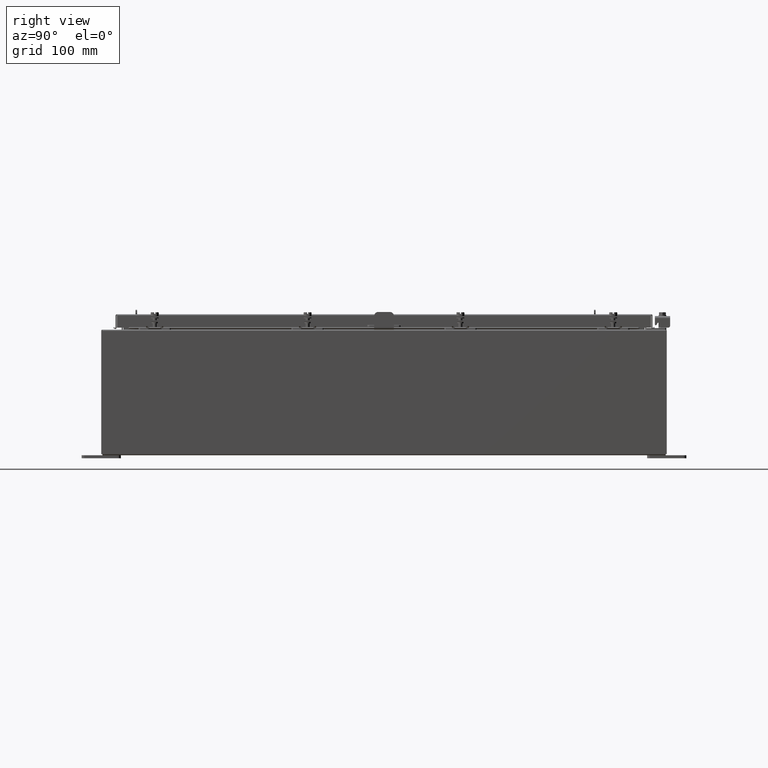
[diagram: clean part render]
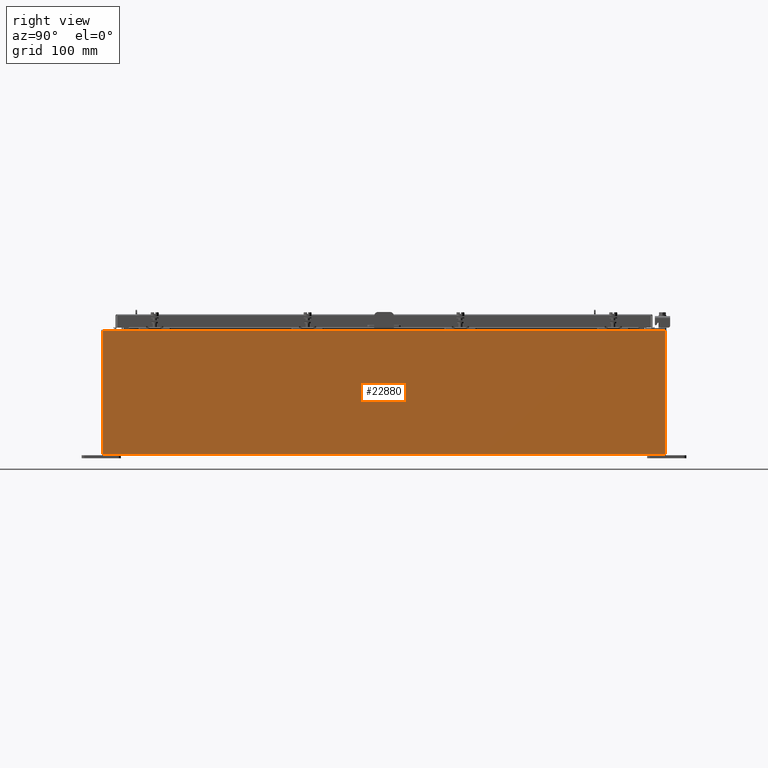
[diagram: same view with one face highlighted and labeled with its STEP entity id]
A machine part, right view. The second image highlights one B-rep face of the part: STEP entity #22880.
In plain terms, the highlighted planar face has unit normal (-1, 0, 0).
Its self-contained STEP definition (entity closure, byte-faithful):
#354 = CARTESIAN_POINT ( 'NONE',  ( 12.00000000000000200, 0.0000000000000000000, -4.327932773236201900E-014 ) ) ;
#427 = DIRECTION ( 'NONE',  ( 3.584876173029202900E-015, 0.0000000000000000000, 1.000000000000000000 ) ) ;
#1502 = VERTEX_POINT ( 'NONE', #15257 ) ;
#2184 = PLANE ( 'NONE',  #15891 ) ;
#2449 = DIRECTION ( 'NONE',  ( -2.185366332686126200E-031, -1.000000000000000000, -6.096072018129156600E-017 ) ) ;
#3275 = LINE ( 'NONE', #6709, #17047 ) ;
#3877 = LINE ( 'NONE', #11215, #8111 ) ;
#6426 = VERTEX_POINT ( 'NONE', #16837 ) ;
#6709 = CARTESIAN_POINT ( 'NONE',  ( 12.00000000000003000, 17.92530000000000000, 7.837599999999992100 ) ) ;
#7049 = CARTESIAN_POINT ( 'NONE',  ( 12.00000000000003000, -17.92530000000000000, 7.837599999999998300 ) ) ;
#7597 = EDGE_CURVE ( 'NONE', #13063, #1502, #3877, .T. ) ;
#8111 = VECTOR ( 'NONE', #427, 39.37007874015748100 ) ;
#8393 = ORIENTED_EDGE ( 'NONE', *, *, #7597, .T. ) ;
#8519 = DIRECTION ( 'NONE',  ( -0.0000000000000000000, -1.000000000000000000, -0.0000000000000000000 ) ) ;
#10063 = ORIENTED_EDGE ( 'NONE', *, *, #12839, .T. ) ;
#10670 = VERTEX_POINT ( 'NONE', #7049 ) ;
#10848 = CARTESIAN_POINT ( 'NONE',  ( 12.00000000000000200, 17.92529999999999600, 0.01300000000000203200 ) ) ;
#11215 = CARTESIAN_POINT ( 'NONE',  ( 12.00000000000000200, 17.92529999999999600, -4.327932773236201900E-014 ) ) ;
#11697 = EDGE_CURVE ( 'NONE', #10670, #6426, #17207, .T. ) ;
#12316 = CARTESIAN_POINT ( 'NONE',  ( 12.00000000000000200, -17.92530000000000400, -4.327932773236201900E-014 ) ) ;
#12421 = VECTOR ( 'NONE', #17735, 39.37007874015748100 ) ;
#12839 = EDGE_CURVE ( 'NONE', #1502, #10670, #3275, .T. ) ;
#12905 = VECTOR ( 'NONE', #2449, 39.37007874015748100 ) ;
#13063 = VERTEX_POINT ( 'NONE', #10848 ) ;
#14740 = DIRECTION ( 'NONE',  ( 3.584876173029202900E-015, 0.0000000000000000000, 1.000000000000000000 ) ) ;
#15257 = CARTESIAN_POINT ( 'NONE',  ( 12.00000000000003000, 17.92530000000000000, 7.837599999999992100 ) ) ;
#15891 = AXIS2_PLACEMENT_3D ( 'NONE', #354, #20079, #14740 ) ;
#16728 = FACE_OUTER_BOUND ( 'NONE', #18998, .T. ) ;
#16752 = CARTESIAN_POINT ( 'NONE',  ( 12.00000000000000200, -17.92530000000000400, 0.01299999999999984700 ) ) ;
#16837 = CARTESIAN_POINT ( 'NONE',  ( 12.00000000000000200, -17.92530000000000400, 0.01299999999999945600 ) ) ;
#17047 = VECTOR ( 'NONE', #8519, 39.37007874015748100 ) ;
#17207 = LINE ( 'NONE', #12316, #12421 ) ;
#17689 = LINE ( 'NONE', #16752, #12905 ) ;
#17735 = DIRECTION ( 'NONE',  ( -3.584876173029202900E-015, 0.0000000000000000000, -1.000000000000000000 ) ) ;
#18503 = ORIENTED_EDGE ( 'NONE', *, *, #19533, .F. ) ;
#18998 = EDGE_LOOP ( 'NONE', ( #10063, #23033, #18503, #8393 ) ) ;
#19533 = EDGE_CURVE ( 'NONE', #13063, #6426, #17689, .T. ) ;
#20079 = DIRECTION ( 'NONE',  ( -1.000000000000000000, 0.0000000000000000000, 3.584876173029202900E-015 ) ) ;
#22880 = ADVANCED_FACE ( 'NONE', ( #16728 ), #2184, .F. ) ;
#23033 = ORIENTED_EDGE ( 'NONE', *, *, #11697, .T. ) ;